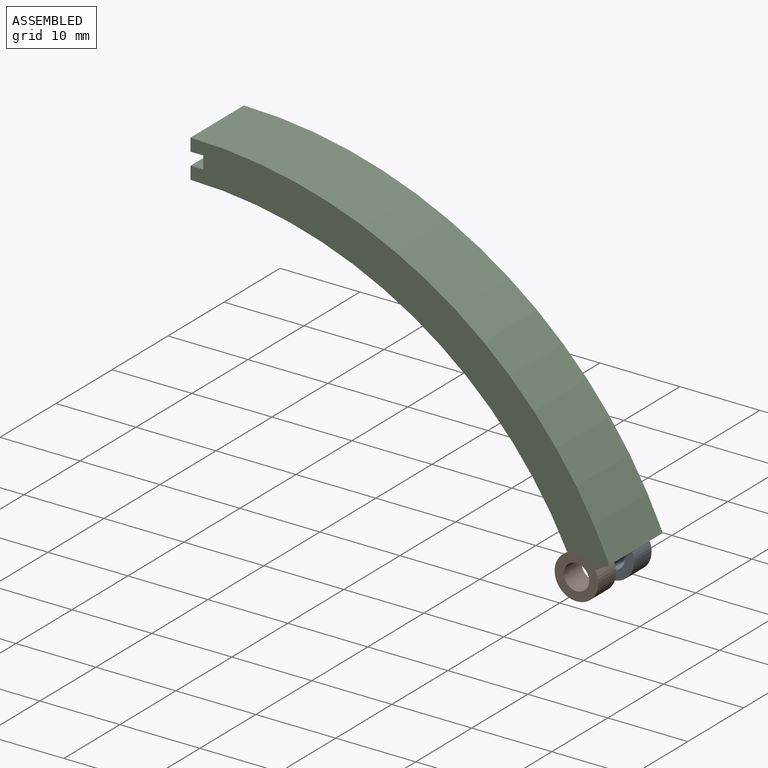
[diagram: assembled view]
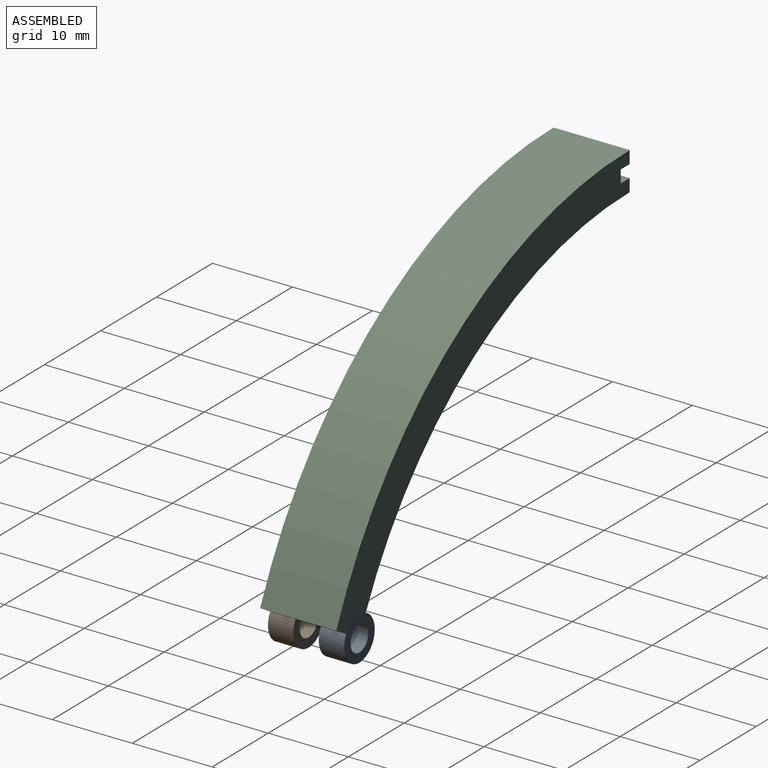
[diagram: assembled view, second angle]
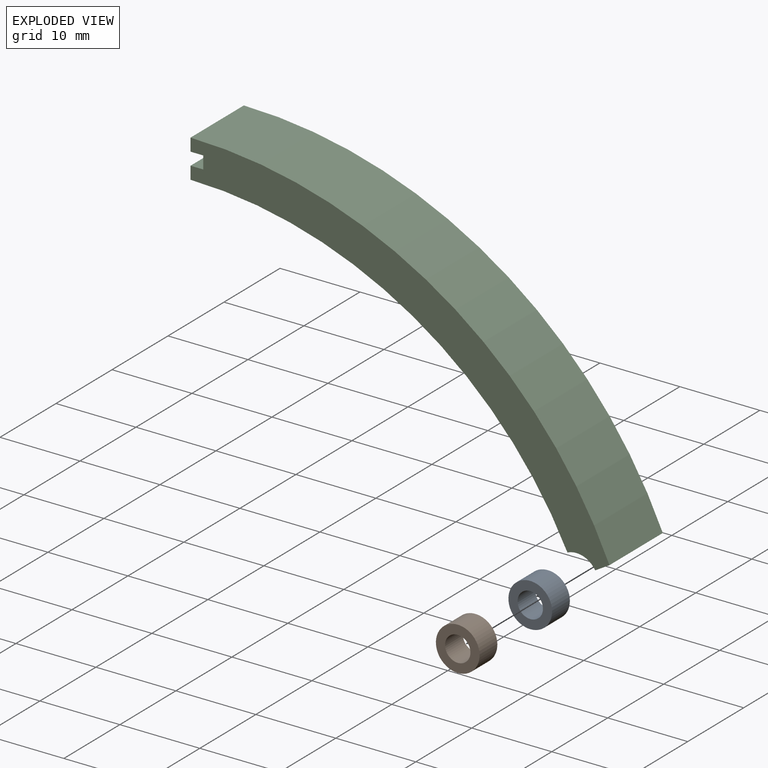
[diagram: exploded view]
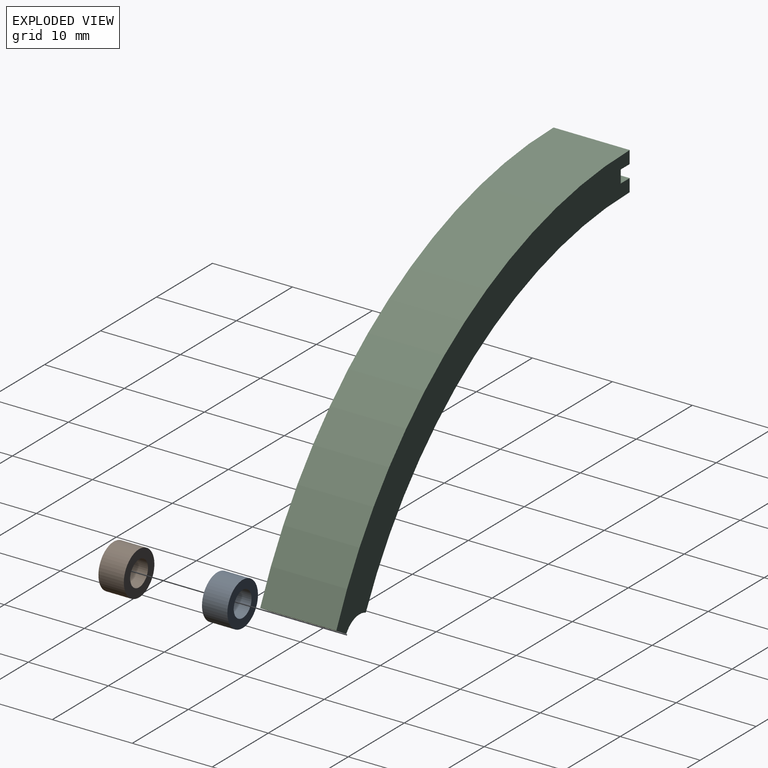
[diagram: exploded view, second angle]
ASSEMBLY  parts=3 mates=2
PART A: 4 faces, bbox 5.5x3.2x5.5 mm
  f0: cylinder r=1.59mm len=3.18mm, axis (0,1,0), area 31.7mm2, adj f2,f3
  f1: cylinder r=2.73mm len=5.46mm, axis (0,1,0), area 54.5mm2, adj f2,f3
  f2: plane 5.46x5.46mm, normal (0,-1,0), area 15.5mm2, adj f0,f1
  f3: plane 5.46x5.46mm, normal (0,1,0), area 15.5mm2, adj f0,f1
PART B: same geometry as A
PART C: 11 faces, bbox 52.4x9.5x35.4 mm
  f0: plane 9.53x1.59mm, normal (-1,0,0), area 15.1mm2, adj f1,f8,f9,f10
  f1: plane 9.53x1.59mm, normal (0,0,-1), area 15.1mm2, adj f0,f2,f9,f10
  f2: plane 9.53x1.59mm, normal (-1,0,0), area 15.1mm2, adj f1,f3,f9,f10
  f3: plane 9.53x1.59mm, normal (0,0,1), area 15.1mm2, adj f2,f4,f9,f10
  f4: plane 9.53x1.59mm, normal (-1,0,0), area 15.1mm2, adj f3,f5,f9,f10
  f5: cylinder r=52.39mm len=47.13mm, axis (0,1,0), area 558.4mm2, adj f4,f6,f9,f10
  f6: cylinder r=2.73mm len=9.53mm, axis (0,1,0), area 38mm2, adj f5,f7,f9,f10
  f7: plane 9.53x1.78mm, normal (0.51,0,-0.86), area 19.8mm2, adj f6,f8,f9,f10
  f8: cylinder r=57.15mm len=52.39mm, axis (0,1,0), area 631.3mm2, adj f0,f7,f9,f10
  f9: plane 52.39x35.37mm, normal (0,-1,0), area 296mm2, adj f0,f1,f2,f3,f4,f5,f6,f7
  f10: plane 52.39x35.37mm, normal (0,1,0), area 296mm2, adj f0,f1,f2,f3,f4,f5,f6,f7
PLACE A t=(32.4,9.08,-21.56)mm
PLACE B t=(32.4,2.73,-21.56)mm
PLACE C t=(1.72,9.08,-2.95)mm
MATE fastened A.f0 <-> C.f6  axis (0,1,0) through (32.4,9.08,-21.56)mm
MATE fastened B.f0 <-> C.f6  axis (0,-1,0) through (32.4,-0.45,-21.56)mm
